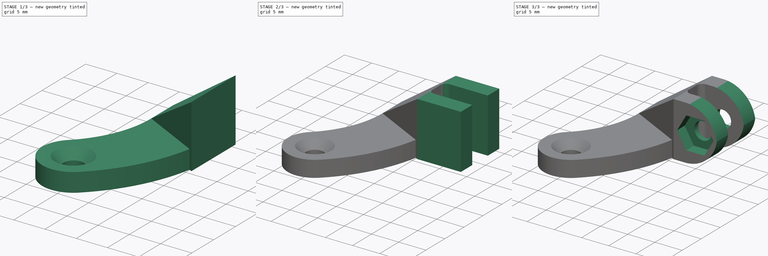
[diagram: build sequence overview — one tinted view per stage of 3, left to right]
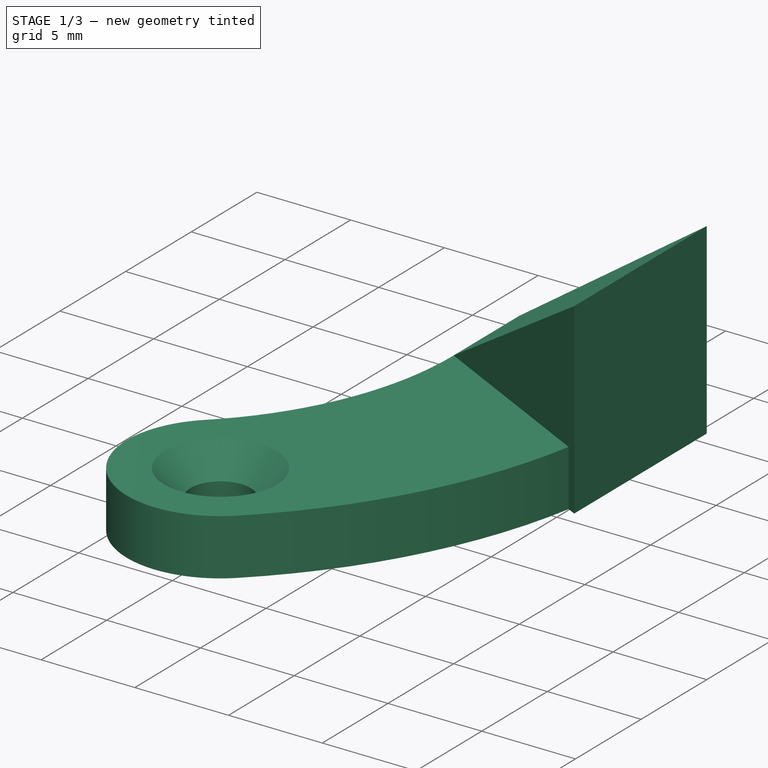
[diagram: stage 1 of 3 — iso view after this stage's code; geometry added in this stage tinted green]
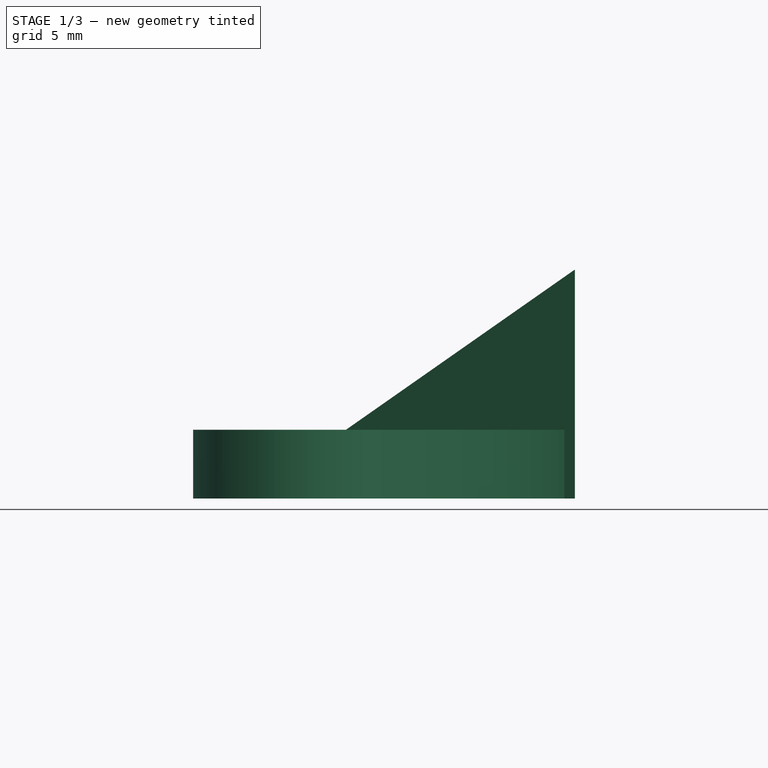
[diagram: stage 1 of 3 — front view after this stage's code; geometry added in this stage tinted green]
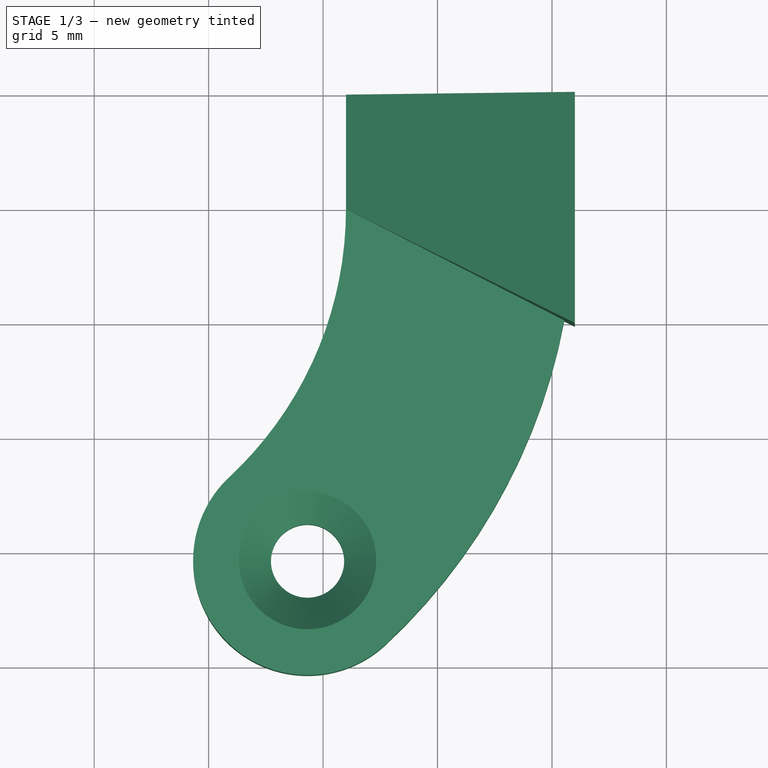
[diagram: stage 1 of 3 — top view after this stage's code; geometry added in this stage tinted green]
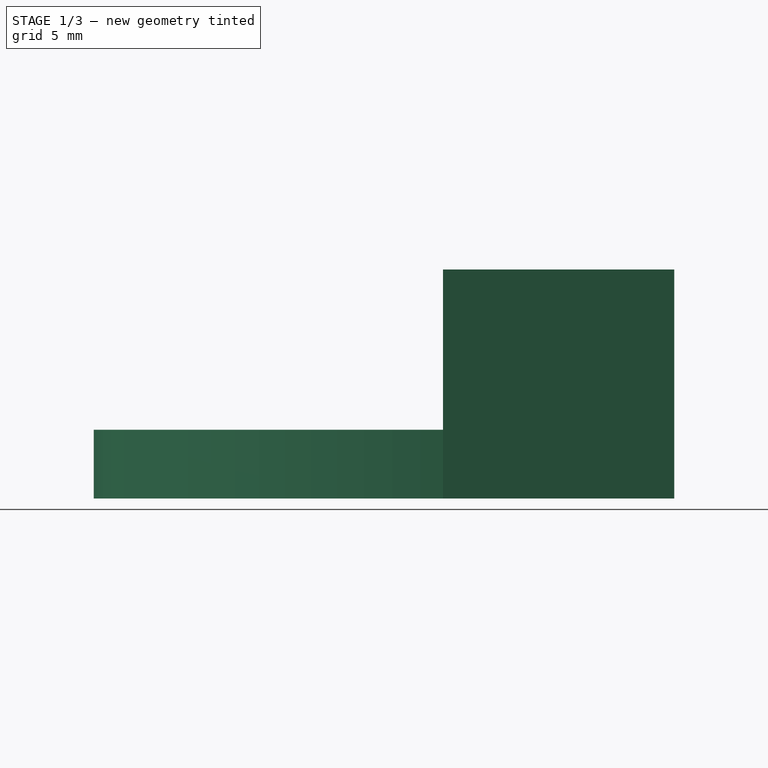
[diagram: stage 1 of 3 — right view after this stage's code; geometry added in this stage tinted green]
FCSTD DOCUMENT  (FreeCAD 1.0R39109 (Git))
Label: laser_arm
License: All rights reserved
LicenseURL: https://en.wikipedia.org/wiki/All_rights_reserved
objects: Sketcher::SketchObject×8, PartDesign::Pad×2, PartDesign::Hole×2, PartDesign::Pocket×2, Spreadsheet::Sheet×1, PartDesign::AdditiveLoft×1, PartDesign::Fillet×1, PartDesign::Body×1
note: 41 computed .brp shape members not serialized (recipe doc carries the construction recipe); baked Part::Feature solids carry a one-line shape summary decoded from their .brp

FEATURE [Spreadsheet::Sheet] Spreadsheet  label="settings"
  cells = A1='arm hole radius; B1(arm_hole_rad)=21; C1='mount length; D1(mount_len)=8; A2='arm angle; B2(arm_ang)=47; C2='mount height; D2(mount_hei)=10; A3='arm wall thicknes; B3(arm_wall_thi)=5; C3='mount lip thickness; D3(mount_lip_thi)=3; A4='arm height; B4(arm_hei)=3; C4='mount gap; D4(mount_gap)=4.1; A5='arm hole dia; B5(arm_hole_dia)=3.2; C5='mount fillet; D5(mount_fillet)=1; C6='mount hole fillet; D6(mount_hole_fillet)=5.9; C7='mount hole dist; D7(mount_hole_dist)=4; C8='mount hex thickness; D8(mount_hex_thi)=5.8; C9='mount hex depth; D9(mount_hex_dep)=2; A11='calculations; A12='total wall thickness; B12(arm_wall_total_thi)==arm_wall_thi * 2; C12='mount total thickness; D12(mount_total_thi)==mount_gap + mount_lip_thi * 2; C13='mount hole position; D13(mount_hole_pos)==mount_len - mount_hole_dist
FEATURE [Sketcher::SketchObject] Sketch
  ArcFitTolerance = 1e-06
  AttachmentSupport = -> [XY_Plane]
  FullyConstrained = true
  MakeInternals = false
  MapMode = 5
  expr: Constraints[1] = Spreadsheet.arm_hole_rad
  expr: Constraints[23] = Spreadsheet.arm_wall_thi
  expr: Constraints[3] = Spreadsheet.arm_ang
  expr: Constraints[4] = Spreadsheet.arm_wall_thi
  sketch-geometry (9):
    g0: GeomPoint X=21 Y=0 Z=0
    g1: LineSegment [constr] StartX=26 StartY=-6.4e-15 StartZ=0 EndX=16 EndY=0 EndZ=0
    g2: LineSegment [constr] StartX=10.912 StartY=-11.7016 StartZ=0 EndX=17.732 EndY=-19.0152 EndZ=0
    g3: ArcOfCircle CenterX=0 CenterY=0 CenterZ=0 NormalX=0 NormalY=0 NormalZ=1 AngleXU=0 Radius=16 StartAngle=5.46288 EndAngle=6.28319
    g4: ArcOfCircle CenterX=0 CenterY=0 CenterZ=0 NormalX=0 NormalY=0 NormalZ=1 AngleXU=0 Radius=26 StartAngle=5.46288 EndAngle=6.28319
    g5: ArcOfCircle CenterX=14.322 CenterY=-15.3584 CenterZ=0 NormalX=0 NormalY=0 NormalZ=1 AngleXU=0 Radius=5 StartAngle=2.32129 EndAngle=5.46288
    g6: LineSegment StartX=16 StartY=0 StartZ=0 EndX=16 EndY=5 EndZ=0
    g7: LineSegment StartX=26 StartY=5 StartZ=0 EndX=16 EndY=5 EndZ=0
    g8: LineSegment StartX=26 StartY=5 StartZ=0 EndX=26 EndY=-6.2e-15 EndZ=0
  constraints (24):
    c: PointOnObject(g0,g-1)
    c: DistanceX(g-1,g0) = 21
    c: PointOnObject(g1,g-1)
    c: Angle(g2,g1) = 0.820305
    c: DistanceX(g0,g1) = 5
    c: Symmetric(g1,g1,g0)
    c: Equal(g2,g1)
    c: Coincident(g3,g-1)
    c: Coincident(g3,g1)
    c: Coincident(g3,g2)
    c: Coincident(g4,g3)
    c: Coincident(g4,g1)
    c: Coincident(g4,g2)
    c: PointOnObject(g5,g2)
    c: Coincident(g5,g2)
    c: Coincident(g5,g2)
    c: Coincident(g6,g1)
    c: Vertical(g6)
    c: Coincident(g7,g6)
    c: Horizontal(g7)
    c: Coincident(g8,g7)
    c: Vertical(g8)
    c: Coincident(g8,g1)
    c: DistanceY(g8,g8) = 5
FEATURE [PartDesign::Pad] Pad  label="arm"
  Direction = (0,0,1)
  Length = 3
  Length2 = 10
  Profile = -> Sketch
  ReferenceAxis = -> Sketch [N_Axis]
  Refine = true
  Suppressed = false
  Type = 0
  expr: Length = Spreadsheet.arm_hei
FEATURE [Sketcher::SketchObject] Sketch001
  ArcFitTolerance = 1e-06
  AttachmentSupport = -> [Pad]
  ExternalGeometry = -> [Pad]
  FullyConstrained = true
  MakeInternals = false
  MapMode = 5
  Placement = pos=(0,0,3) rot=(0,0,1;0rad)
  expr: Constraints[1] = Spreadsheet.arm_hole_dia
  sketch-geometry (1):
    g0: Circle CenterX=14.322 CenterY=-15.3584 CenterZ=0 NormalX=0 NormalY=0 NormalZ=1 AngleXU=0 Radius=1.6
  constraints (2):
    c: Coincident(g0,g-3)
    c: Diameter(g0) = 3.2
FEATURE [PartDesign::Hole] Hole  label="arm_hole"
  BaseFeature = -> Pad
  CustomThreadClearance = 0
  Depth = 48.217
  DepthType = 1
  Diameter = 3.2
  DrillForDepth = false
  DrillPoint = 1
  DrillPointAngle = 118
  HoleCutCountersinkAngle = 90
  HoleCutCustomValues = false
  HoleCutDepth = 0
  HoleCutDiameter = 6
  HoleCutType = 2
  ModelThread = false
  Profile = -> Sketch001
  Refine = true
  Suppressed = false
  Tapered = false
  TaperedAngle = 90
  ThreadClass = 0
  ThreadDepth = 48.217
  ThreadDepthType = 0
  ThreadDirection = 0
  ThreadFit = 0
  ThreadSize = 0
  ThreadType = 0
  Threaded = false
  UseCustomThreadClearance = false
  expr: Diameter = Spreadsheet.arm_hole_dia
FEATURE [Sketcher::SketchObject] Sketch002
  ArcFitTolerance = 1e-06
  AttachmentSupport = -> [Hole]
  ExternalGeometry = -> [Hole]
  FullyConstrained = true
  MakeInternals = false
  MapMode = 5
  Placement = pos=(16,0,0) rot=(0.57735,-0.57735,-0.57735;2.0944rad)
  sketch-geometry (4):
    g0: LineSegment StartX=-5 StartY=0 StartZ=0 EndX=0 EndY=0 EndZ=0
    g1: LineSegment StartX=0 StartY=0 StartZ=0 EndX=0 EndY=3 EndZ=0
    g2: LineSegment StartX=0 StartY=3 StartZ=0 EndX=-5 EndY=3 EndZ=0
    g3: LineSegment StartX=-5 StartY=3 StartZ=0 EndX=-5 EndY=0 EndZ=0
  constraints (10):
    c: Coincident(g0,g1)
    c: Coincident(g1,g2)
    c: Coincident(g2,g3)
    c: Coincident(g3,g0)
    c: Horizontal(g0)
    c: Horizontal(g2)
    c: Vertical(g1)
    c: Vertical(g3)
    c: Coincident(g0,g-3)
    c: Coincident(g1,g-4)
FEATURE [Sketcher::SketchObject] Sketch003
  ArcFitTolerance = 1e-06
  AttachmentSupport = -> [Hole]
  ExternalGeometry = -> [Hole]
  FullyConstrained = true
  MakeInternals = false
  MapMode = 5
  Placement = pos=(26,0,0) rot=(0.57735,0.57735,0.57735;2.0944rad)
  expr: Constraints[10] = Spreadsheet.mount_hei
  expr: Constraints[9] = Spreadsheet.mount_total_thi
  sketch-geometry (4):
    g0: LineSegment StartX=5 StartY=0 StartZ=0 EndX=5 EndY=10 EndZ=0
    g1: LineSegment StartX=5 StartY=10 StartZ=0 EndX=-5.1 EndY=10 EndZ=0
    g2: LineSegment StartX=-5.1 StartY=10 StartZ=0 EndX=-5.1 EndY=0 EndZ=0
    g3: LineSegment StartX=-5.1 StartY=0 StartZ=0 EndX=5 EndY=0 EndZ=0
  constraints (11):
    c: Coincident(g0,g1)
    c: Coincident(g1,g2)
    c: Coincident(g2,g3)
    c: Coincident(g3,g0)
    c: Vertical(g0)
    c: Vertical(g2)
    c: Horizontal(g1)
    c: Horizontal(g3)
    c: Coincident(g0,g-3)
    c: DistanceX(g3,g3) = 10.1
    c: DistanceY(g0,g0) = 10
FEATURE [PartDesign::AdditiveLoft] AdditiveLoft  label="mount_point"
  BaseFeature = -> Hole
  Closed = false
  Profile = -> Sketch002
  Refine = true
  Ruled = false
  Sections = -> [Sketch003]
  Suppressed = false
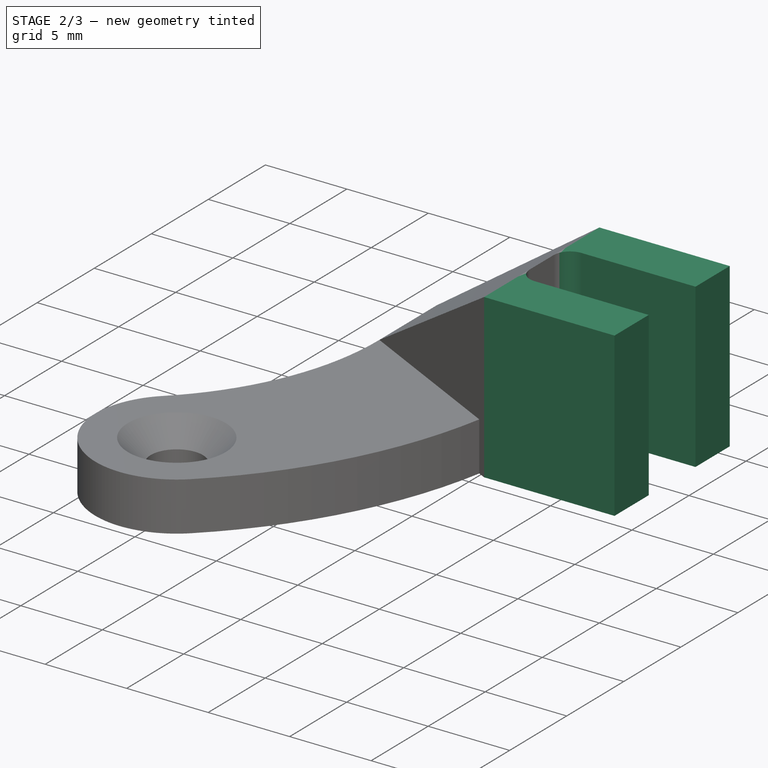
[diagram: stage 2 of 3 — iso view after this stage's code; geometry added in this stage tinted green]
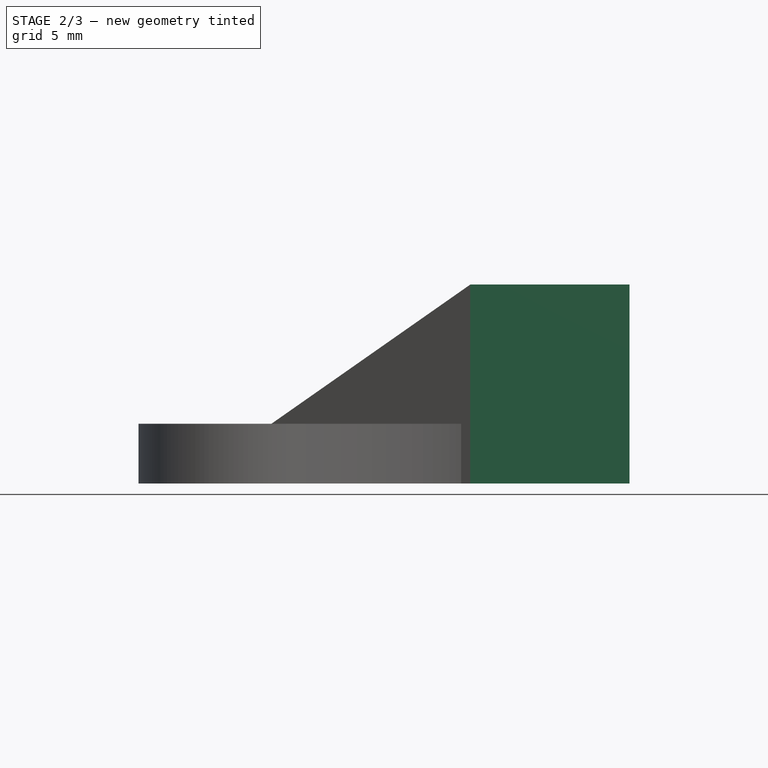
[diagram: stage 2 of 3 — front view after this stage's code; geometry added in this stage tinted green]
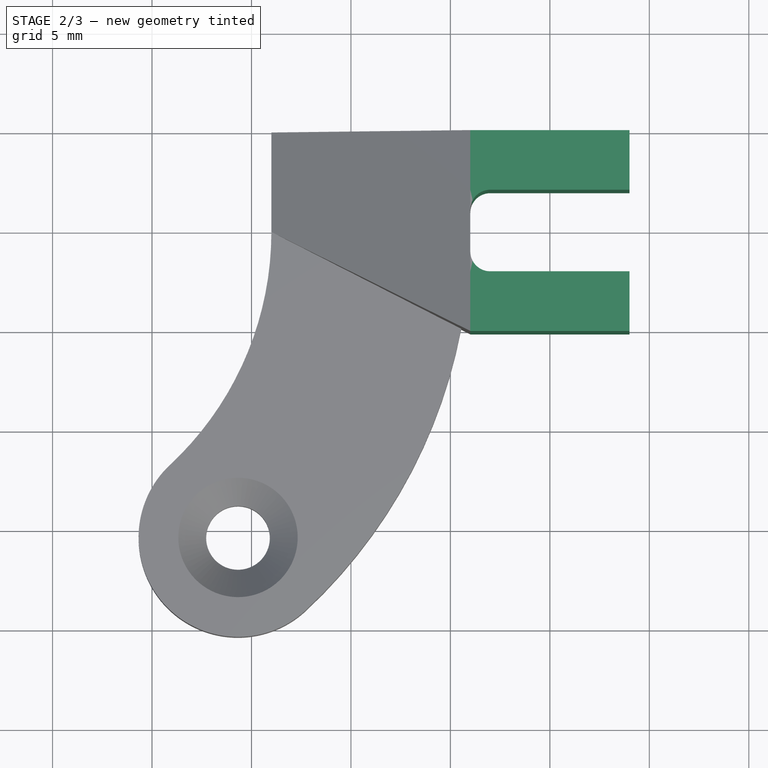
[diagram: stage 2 of 3 — top view after this stage's code; geometry added in this stage tinted green]
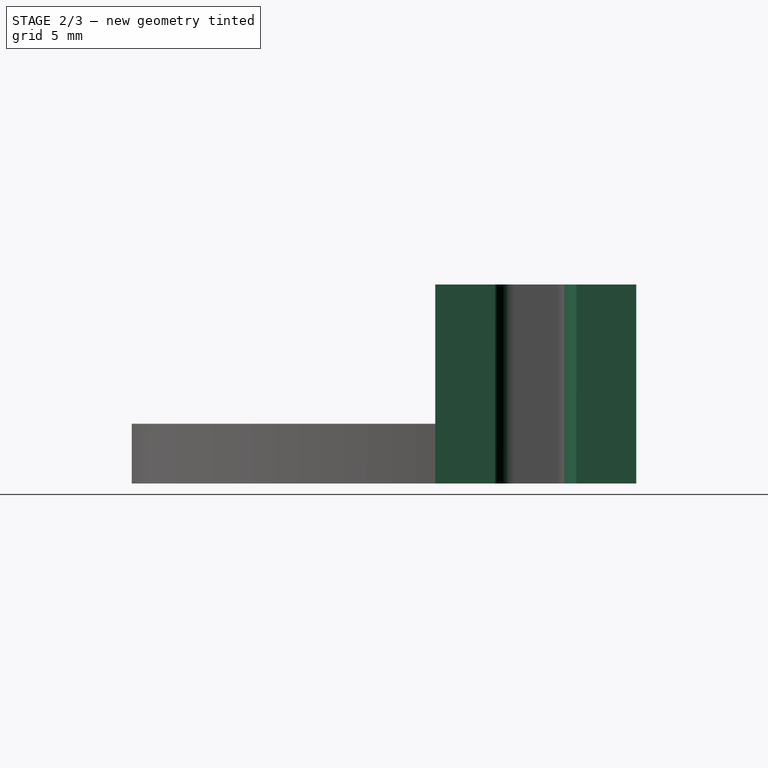
[diagram: stage 2 of 3 — right view after this stage's code; geometry added in this stage tinted green]
FEATURE [Sketcher::SketchObject] Sketch004
  ArcFitTolerance = 1e-06
  AttachmentSupport = -> [XY_Plane]
  ExternalGeometry = -> [AdditiveLoft]
  FullyConstrained = true
  MakeInternals = false
  MapMode = 5
  expr: Constraints[13] = Spreadsheet.mount_len
  expr: Constraints[5] = Spreadsheet.mount_gap
  sketch-geometry (8):
    g0: LineSegment StartX=26 StartY=5 StartZ=0 EndX=26 EndY=2 EndZ=0
    g1: LineSegment StartX=26 StartY=-5.1 StartZ=0 EndX=26 EndY=-2.1 EndZ=0
    g2: LineSegment StartX=26 StartY=5 StartZ=0 EndX=34 EndY=5 EndZ=0
    g3: LineSegment StartX=26 StartY=2 StartZ=0 EndX=34 EndY=2 EndZ=0
    g4: LineSegment StartX=34 StartY=5 StartZ=0 EndX=34 EndY=2 EndZ=0
    g5: LineSegment StartX=26 StartY=-2.1 StartZ=0 EndX=34 EndY=-2.1 EndZ=0
    g6: LineSegment StartX=26 StartY=-5.1 StartZ=0 EndX=34 EndY=-5.1 EndZ=0
    g7: LineSegment StartX=34 StartY=-2.1 StartZ=0 EndX=34 EndY=-5.1 EndZ=0
  constraints (22):
    c: Coincident(g0,g-3)
    c: Coincident(g1,g-4)
    c: Vertical(g0)
    c: Vertical(g1)
    c: Equal(g1,g0)
    c: DistanceY(g1,g0) = 4.1
    c: Horizontal(g2)
    c: Horizontal(g3)
    c: Coincident(g2,g0)
    c: Coincident(g3,g0)
    c: Coincident(g4,g3)
    c: Coincident(g4,g2)
    c: Vertical(g4)
    c: DistanceX(g3,g3) = 8
    c: Coincident(g5,g1)
    c: Horizontal(g5)
    c: Coincident(g6,g1)
    c: Horizontal(g6)
    c: Vertical(g7)
    c: Coincident(g7,g5)
    c: Coincident(g7,g6)
    c: Vertical(g5,g3)
FEATURE [PartDesign::Pad] Pad001  label="mount_fingers"
  BaseFeature = -> AdditiveLoft
  Direction = (0,0,1)
  Length = 10
  Length2 = 10
  Profile = -> Sketch004
  ReferenceAxis = -> Sketch004 [N_Axis]
  Refine = true
  Suppressed = false
  Type = 0
  expr: Length = Spreadsheet.mount_hei
FEATURE [PartDesign::Fillet] Fillet  label="mount_fillet"
  Base = -> Pad001 [Edge26,Edge25]
  BaseFeature = -> Pad001
  Radius = 1
  Refine = true
  SupportTransform = false
  Suppressed = false
  UseAllEdges = false
  expr: Radius = Spreadsheet.mount_fillet
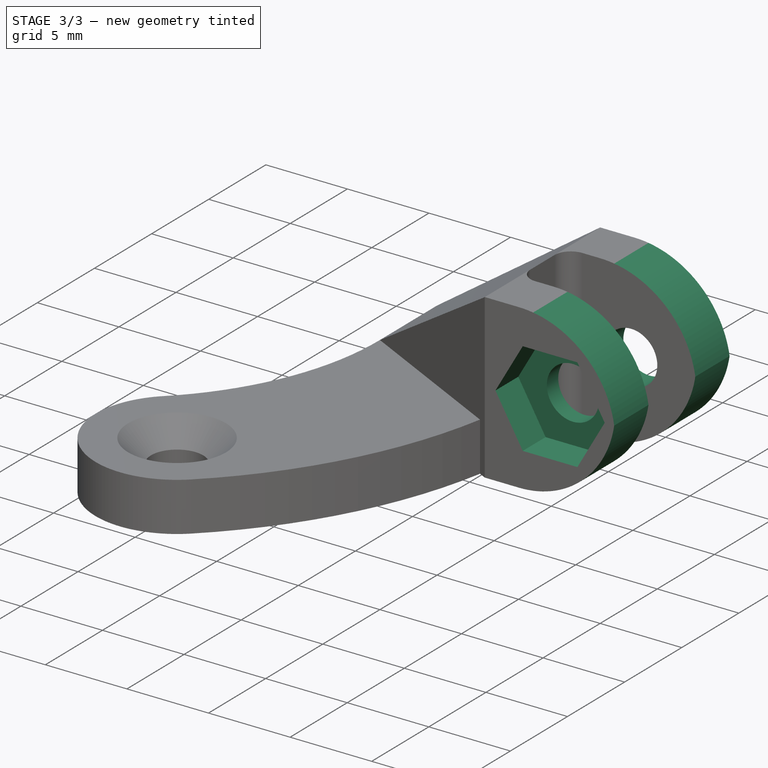
[diagram: stage 3 of 3 — iso view after this stage's code; geometry added in this stage tinted green]
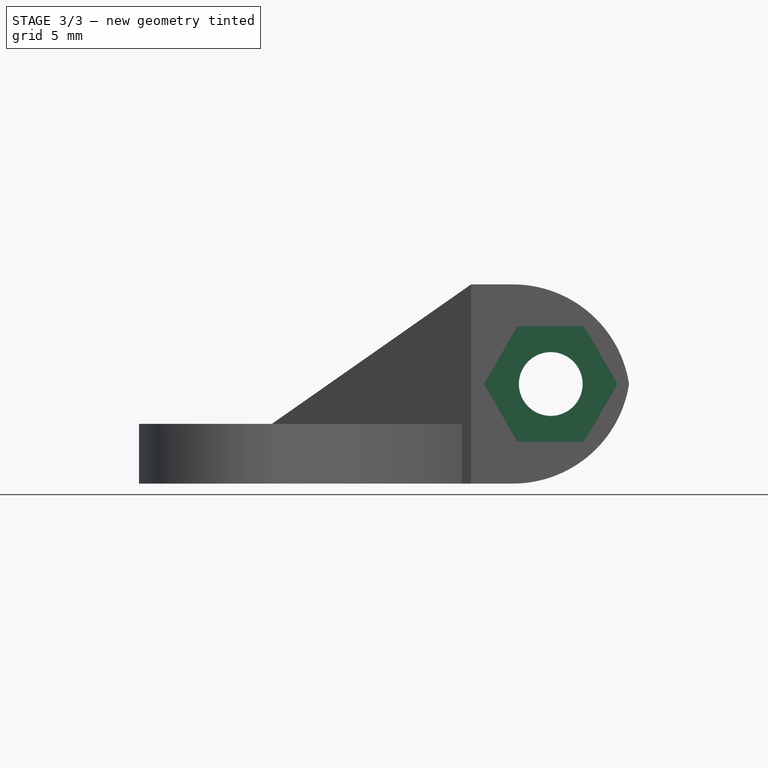
[diagram: stage 3 of 3 — front view after this stage's code; geometry added in this stage tinted green]
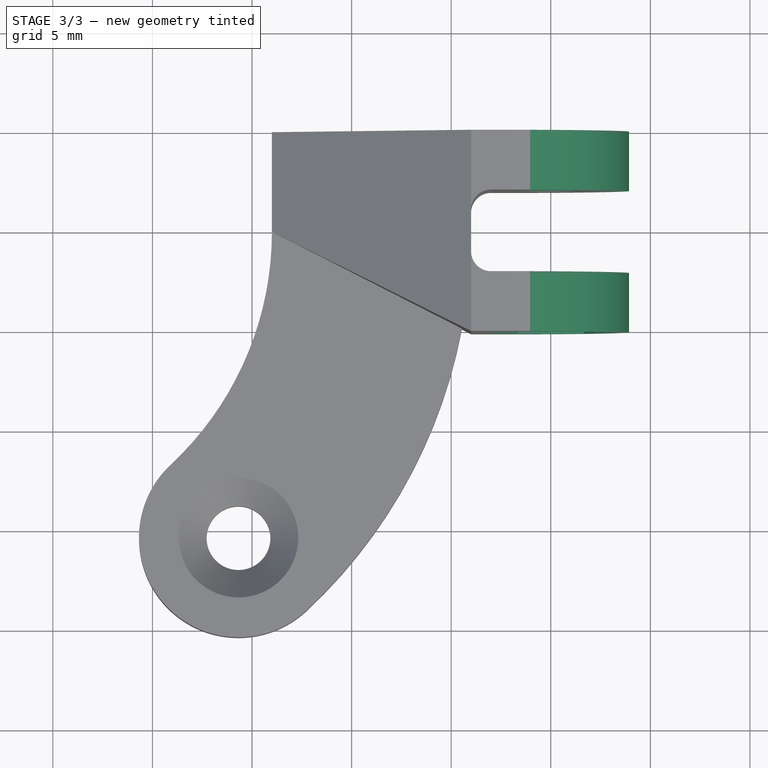
[diagram: stage 3 of 3 — top view after this stage's code; geometry added in this stage tinted green]
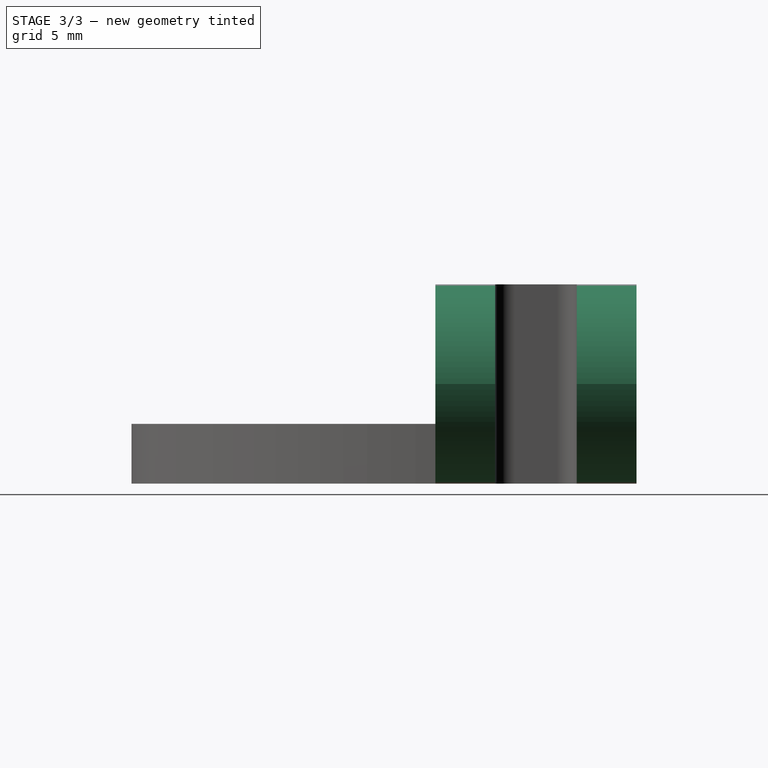
[diagram: stage 3 of 3 — right view after this stage's code; geometry added in this stage tinted green]
FEATURE [Sketcher::SketchObject] Sketch005
  ArcFitTolerance = 1e-06
  AttachmentSupport = -> [Fillet]
  ExternalGeometry = -> [Fillet]
  FullyConstrained = true
  MakeInternals = false
  MapMode = 5
  Placement = pos=(0,5,0) rot=(0,0.707107,0.707107;3.14159rad)
  expr: Constraints[10] = Spreadsheet.mount_hole_fillet
  sketch-geometry (7):
    g0: GeomPoint X=-34 Y=5 Z=0
    g1: LineSegment StartX=-34 StartY=10 StartZ=0 EndX=-28.1 EndY=10 EndZ=0
    g2: LineSegment StartX=-34 StartY=10 StartZ=0 EndX=-34 EndY=4.1 EndZ=0
    g3: LineSegment StartX=-34 StartY=0 StartZ=0 EndX=-34 EndY=5.9 EndZ=0
    g4: LineSegment StartX=-34 StartY=0 StartZ=0 EndX=-28.1 EndY=0 EndZ=0
    g5: ArcOfCircle CenterX=-28.1 CenterY=4.1 CenterZ=0 NormalX=0 NormalY=0 NormalZ=1 AngleXU=0 Radius=5.9 StartAngle=1.5708 EndAngle=3.14159
    g6: ArcOfCircle CenterX=-28.1 CenterY=5.9 CenterZ=0 NormalX=0 NormalY=0 NormalZ=1 AngleXU=0 Radius=5.9 StartAngle=3.14159 EndAngle=4.71239
  constraints (19):
    c: Symmetric(g-3,g-4,g0)
    c: Coincident(g1,g-3)
    c: Horizontal(g1)
    c: Coincident(g2,g1)
    c: Vertical(g2)
    c: Coincident(g3,g-4)
    c: Vertical(g3)
    c: Coincident(g4,g3)
    c: PointOnObject(g4,g-1)
    c: Coincident(g5,g1)
    c: DistanceX(g1,g1) = 5.9
    c: Vertical(g5,g1)
    c: Vertical(g1,g6)
    c: Vertical(g1,g4)
    c: Coincident(g6,g4)
    c: Equal(g1,g2)
    c: Equal(g1,g3)
    c: Coincident(g6,g3)
    c: Coincident(g5,g2)
FEATURE [PartDesign::Pocket] Pocket  label="mount_rotation_fillets"
  BaseFeature = -> Fillet
  Direction = (0,-1,2e-16)
  Length = 5
  Length2 = 5
  Profile = -> Sketch005
  ReferenceAxis = -> Sketch005 [N_Axis]
  Refine = true
  Suppressed = false
  Type = 1
FEATURE [Sketcher::SketchObject] Sketch006
  ArcFitTolerance = 1e-06
  AttachmentSupport = -> [Pocket]
  ExternalGeometry = -> [Pocket]
  FullyConstrained = true
  MakeInternals = false
  MapMode = 5
  Placement = pos=(0,5,0) rot=(0,0.707107,0.707107;3.14159rad)
  expr: Constraints[1] = Spreadsheet.arm_hole_dia
  expr: Constraints[6] = Spreadsheet.mount_hole_pos
  sketch-geometry (3):
    g0: GeomPoint X=-30 Y=5 Z=0
    g1: Circle CenterX=-30 CenterY=5 CenterZ=0 NormalX=0 NormalY=0 NormalZ=1 AngleXU=0 Radius=1.6
    g2: LineSegment [constr] StartX=-30 StartY=10 StartZ=0 EndX=-30 EndY=0 EndZ=0
  constraints (7):
    c: Coincident(g1,g0)
    c: Diameter(g1) = 3.2
    c: Vertical(g2)
    c: Horizontal(g2,g-3)
    c: Horizontal(g2,g-4)
    c: Symmetric(g2,g2,g0)
    c: DistanceX(g2,g-3) = 4
FEATURE [PartDesign::Hole] Hole001  label="mount_hole"
  BaseFeature = -> Pocket
  CustomThreadClearance = 0
  Depth = 76.1745
  DepthType = 1
  Diameter = 3.2
  DrillForDepth = false
  DrillPoint = 1
  DrillPointAngle = 118
  HoleCutCountersinkAngle = 90
  HoleCutCustomValues = false
  HoleCutDepth = 0
  HoleCutDiameter = 6
  HoleCutType = 2
  ModelThread = false
  Profile = -> Sketch006
  Refine = true
  Suppressed = false
  Tapered = false
  TaperedAngle = 90
  ThreadClass = 0
  ThreadDepth = 76.1745
  ThreadDepthType = 0
  ThreadDirection = 0
  ThreadFit = 0
  ThreadSize = 0
  ThreadType = 0
  Threaded = false
  UseCustomThreadClearance = false
  expr: Diameter = Spreadsheet.arm_hole_dia
FEATURE [Sketcher::SketchObject] Sketch007
  ArcFitTolerance = 1e-06
  AttachmentSupport = -> [Hole001]
  ExternalGeometry = -> [Hole001]
  FullyConstrained = true
  MakeInternals = false
  MapMode = 5
  Placement = pos=(0,-5.1,0) rot=(1,0,0;1.5708rad)
  expr: Constraints[19] = Spreadsheet.mount_hex_thi
  sketch-geometry (7):
    g0: LineSegment StartX=33.3486 StartY=5 StartZ=0 EndX=31.6743 EndY=7.9 EndZ=0
    g1: LineSegment StartX=31.6743 StartY=7.9 StartZ=0 EndX=28.3257 EndY=7.9 EndZ=0
    g2: LineSegment StartX=28.3257 StartY=7.9 StartZ=0 EndX=26.6514 EndY=5 EndZ=0
    g3: LineSegment StartX=26.6514 StartY=5 StartZ=0 EndX=28.3257 EndY=2.1 EndZ=0
    g4: LineSegment StartX=28.3257 StartY=2.1 StartZ=0 EndX=31.6743 EndY=2.1 EndZ=0
    g5: LineSegment StartX=31.6743 StartY=2.1 StartZ=0 EndX=33.3486 EndY=5 EndZ=0
    g6: Circle [constr] CenterX=30 CenterY=5 CenterZ=0 NormalX=0 NormalY=0 NormalZ=1 AngleXU=0 Radius=3.34863
  constraints (16):
    c: Coincident(g0,g1)
    c: Coincident(g1,g2)
    c: Coincident(g2,g3)
    c: Coincident(g3,g4)
    c: Coincident(g4,g5)
    c: Coincident(g5,g0)
    c: Equal(g0, g1-g5) x5
    c: PointOnObject(g0,g6)
    c: PointOnObject(g1,g6)
    c: PointOnObject(g2,g6)
    c: PointOnObject(g3,g6)
    c: PointOnObject(g4,g6)
    c: PointOnObject(g5,g6)
    c: Horizontal(g1)
    c: Coincident(g6,g-3)
    c: DistanceY(g4,g0) = 5.8
FEATURE [PartDesign::Pocket] Pocket001
  BaseFeature = -> Hole001
  Direction = (0,1,-2e-16)
  Length = 2
  Length2 = 5
  Profile = -> Sketch007
  ReferenceAxis = -> Sketch007 [N_Axis]
  Refine = true
  Suppressed = false
  Type = 0
  expr: Length = Spreadsheet.mount_hex_dep
FEATURE [PartDesign::Body] Body
  AllowCompound = false
  Group = -> [Sketch,Pad,Sketch001,Hole,Sketch002,Sketch003,AdditiveLoft,Sketch004,Pad001,Fillet,Sketch005,Pocket,Sketch006,Hole001,Sketch007,Pocket001]
  Origin = -> Origin
  Tip = -> Pocket001
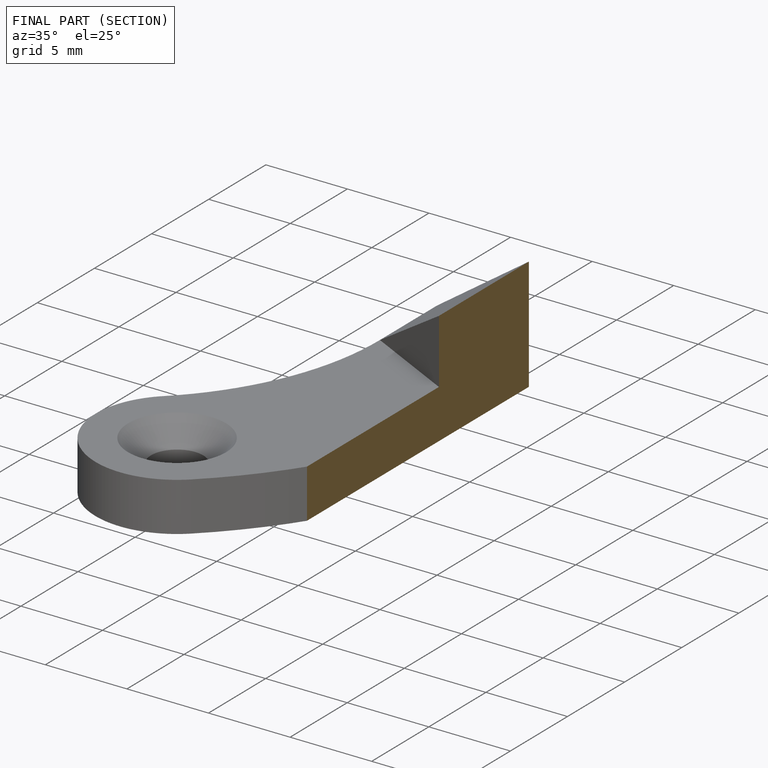
[diagram: finished part — half-section view (interior)]
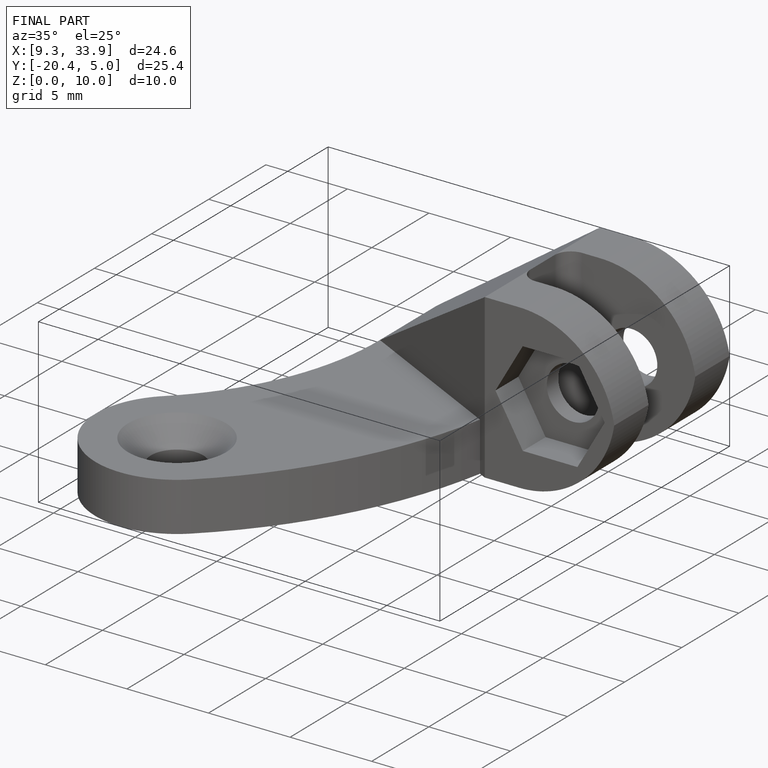
[diagram: finished part — iso view with bounding-box wireframe]
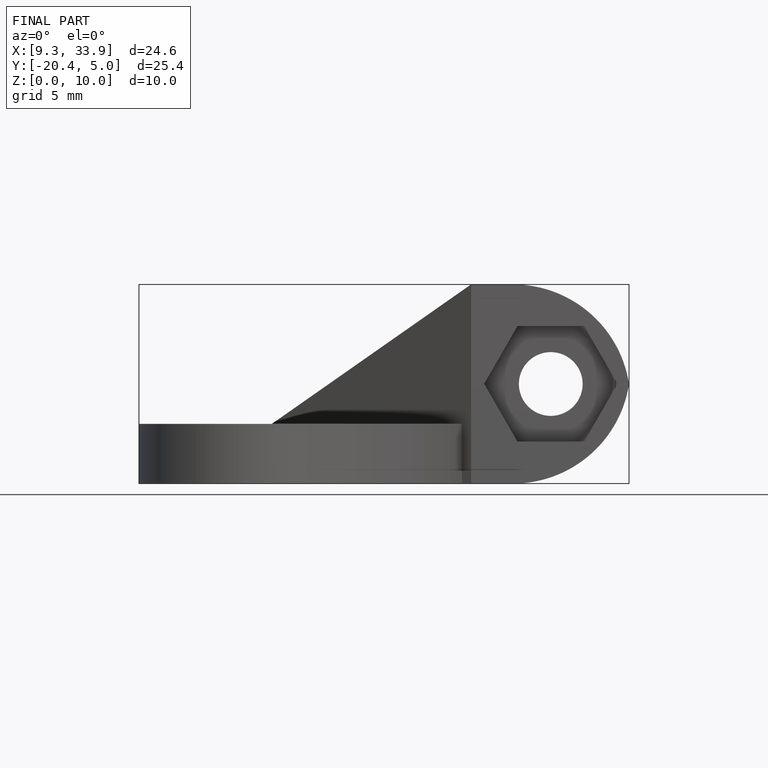
[diagram: finished part — front view with bounding-box wireframe]
